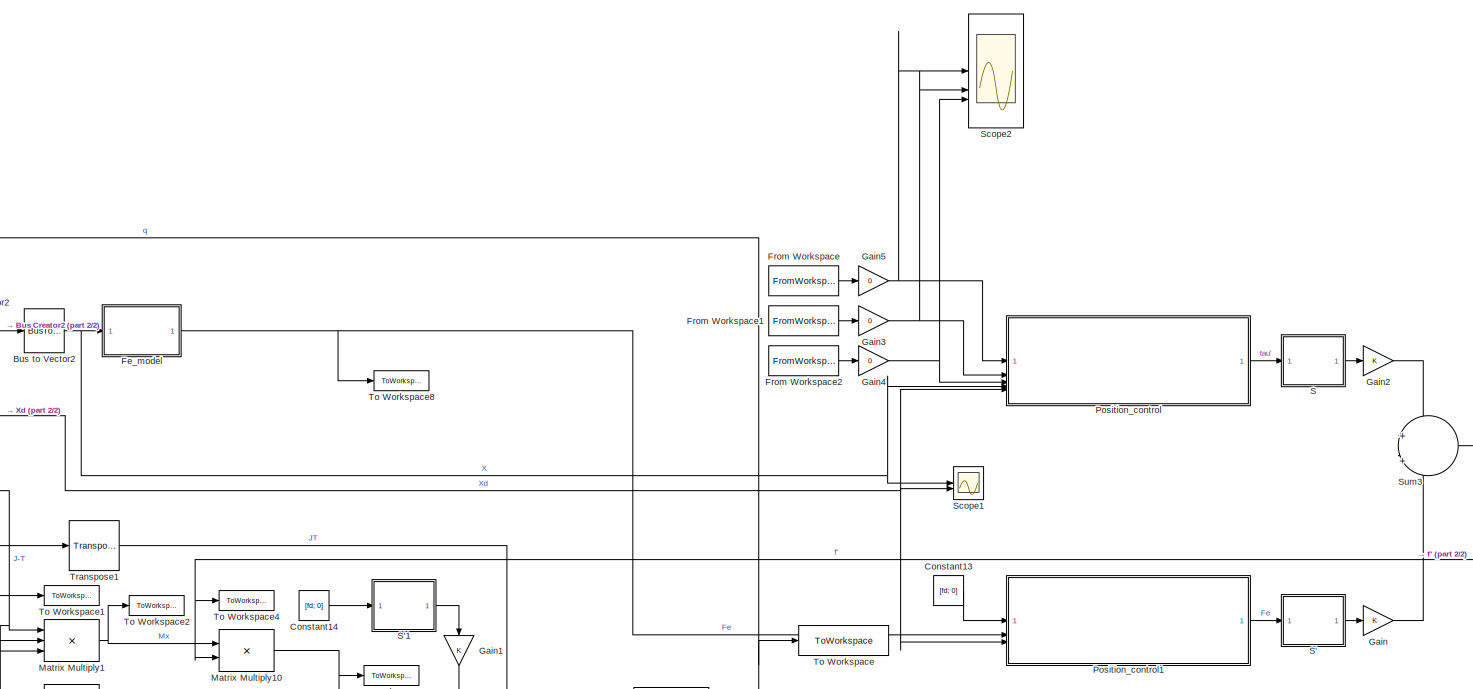
[diagram: root canvas - part 1/2, full width, middle band]
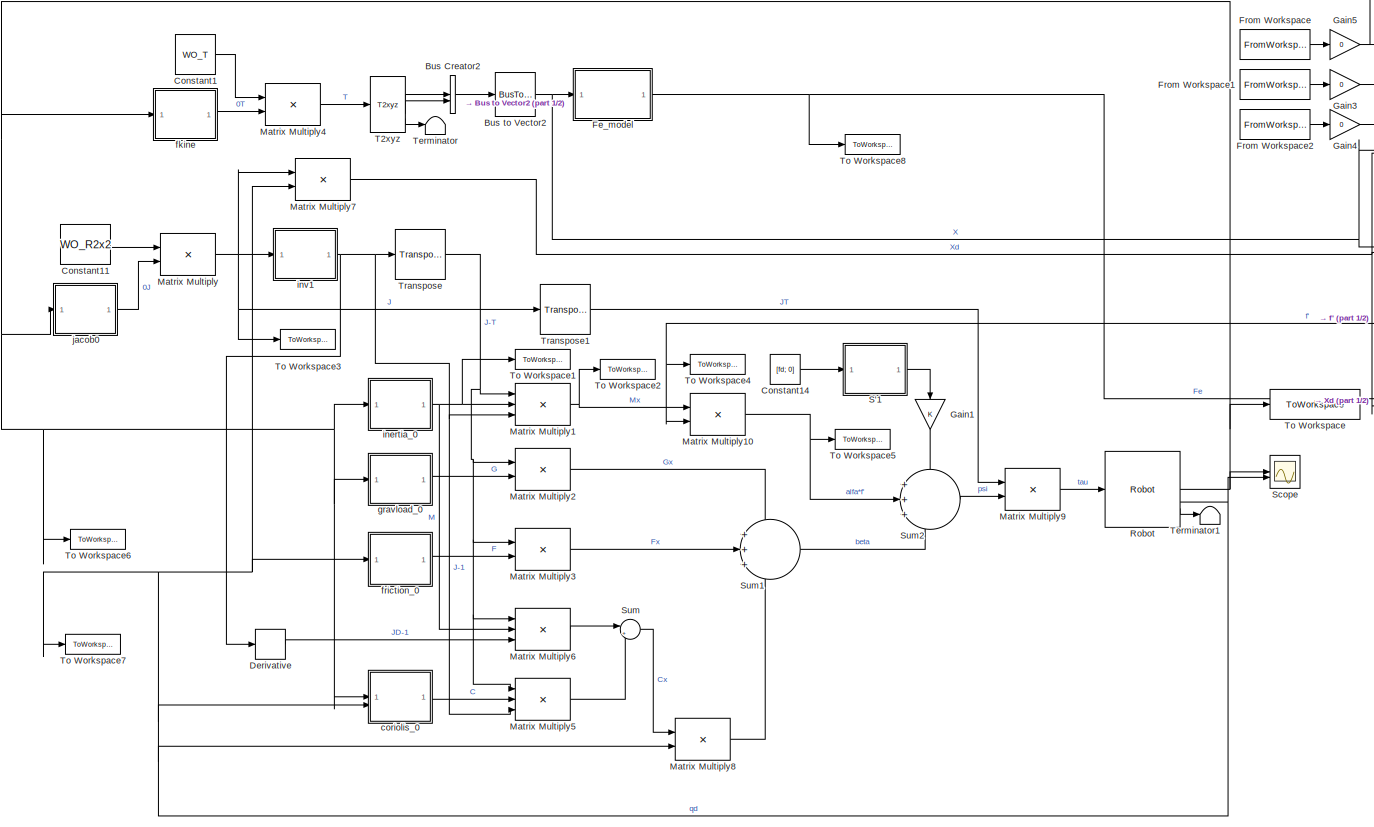
[diagram: root canvas - part 2/2, center side, full height]
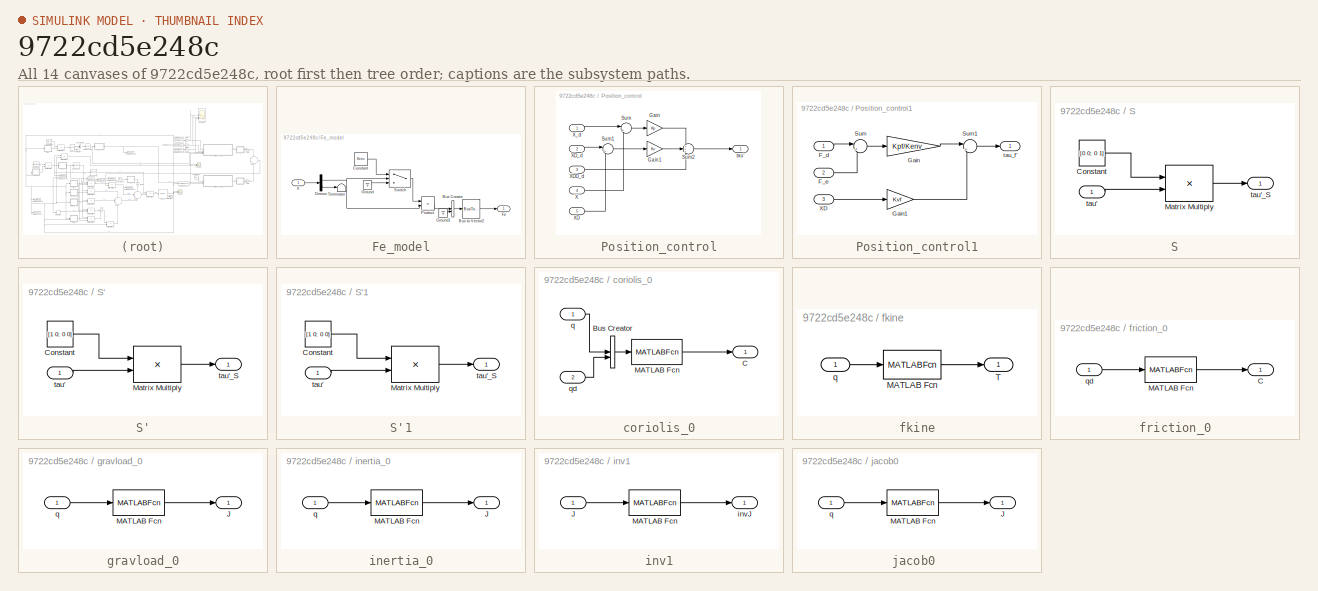
[diagram: thumbnail index - all 14 canvases of the model, root first then tree order]
MODEL slx_9722cd5e248c
KIND model
CONFIG AbsTol = auto
CONFIG EnableMultiTasking = off
CONFIG FixedStep = step
CONFIG MaxStep = auto
CONFIG MinStep = auto
CONFIG RelTol = 1e-3
CONFIG SampleTimeConstraint = Unconstrained
CONFIG SolverName = VariableStepAuto
CONFIG StartTime = 0.0
CONFIG StopTime = 2
BLOCK [BusCreator] Bus Creator2
  DisplayOption = bar
  InheritFromInputs = on
  Inputs = 2
BLOCK [BusToVector] Bus to Vector2
BLOCK [Constant] Constant1
  Value = WO_T
  VectorParams1D = off
BLOCK [Constant] Constant11
  Value = WO_R2x2
  VectorParams1D = off
BLOCK [Constant] Constant13
  Value = [fd; 0]
BLOCK [Constant] Constant14
  Value = [fd; 0]
BLOCK [Derivative] Derivative
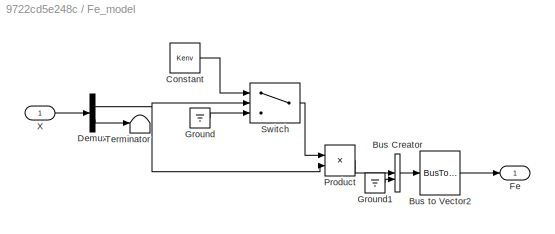
BLOCK [SubSystem] Fe_model
BLOCK [BusCreator] Fe_model/Bus Creator
  DisplayOption = bar
  InheritFromInputs = on
  Inputs = 2
BLOCK [BusToVector] Fe_model/Bus to Vector2
BLOCK [Constant] Fe_model/Constant
  Value = Kenv
BLOCK [Demux] Fe_model/Demux
  Outputs = 2
BLOCK [Outport] Fe_model/Fe
  VectorParamsAs1DForOutWhenUnconnected = off
BLOCK [Ground] Fe_model/Ground
BLOCK [Ground] Fe_model/Ground1
BLOCK [Product] Fe_model/Product
BLOCK [Switch] Fe_model/Switch
  Criteria = u2 > Threshold
  InputSameDT = off
  SaturateOnIntegerOverflow = off
BLOCK [Terminator] Fe_model/Terminator
BLOCK [Inport] Fe_model/X
BLOCK [FromWorkspace] From Workspace
  SampleTime = step
  VariableName = sim_x
BLOCK [FromWorkspace] From Workspace1
  SampleTime = step
  VariableName = sim_xd
BLOCK [FromWorkspace] From Workspace2
  SampleTime = step
  VariableName = sim_xdd
BLOCK [Gain] Gain
BLOCK [Gain] Gain1
  NameLocation = left
BLOCK [Gain] Gain2
BLOCK [Gain] Gain3
  Gain = 0
BLOCK [Gain] Gain4
  Gain = 0
BLOCK [Gain] Gain5
  Gain = 0
BLOCK [Product] Matrix Multiply
  Multiplication = Matrix(*)
BLOCK [Product] Matrix Multiply1
  Inputs = 3
  Multiplication = Matrix(*)
BLOCK [Product] Matrix Multiply10
  Multiplication = Matrix(*)
BLOCK [Product] Matrix Multiply2
  Multiplication = Matrix(*)
BLOCK [Product] Matrix Multiply3
  Multiplication = Matrix(*)
BLOCK [Product] Matrix Multiply4
  Multiplication = Matrix(*)
BLOCK [Product] Matrix Multiply5
  Inputs = 3
  Multiplication = Matrix(*)
BLOCK [Product] Matrix Multiply6
  Inputs = 3
  Multiplication = Matrix(*)
BLOCK [Product] Matrix Multiply7
  Multiplication = Matrix(*)
BLOCK [Product] Matrix Multiply8
  Multiplication = Matrix(*)
BLOCK [Product] Matrix Multiply9
  Multiplication = Matrix(*)
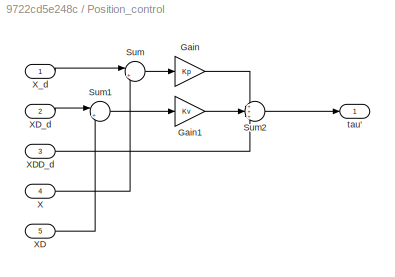
BLOCK [SubSystem] Position_control
BLOCK [Gain] Position_control/Gain
  Gain = Kp
BLOCK [Gain] Position_control/Gain1
  Gain = Kv
BLOCK [Sum] Position_control/Sum
  Inputs = |+-
BLOCK [Sum] Position_control/Sum1
  Inputs = |+-
BLOCK [Sum] Position_control/Sum2
  Inputs = +++
BLOCK [Inport] Position_control/X
  Port = 4
BLOCK [Inport] Position_control/XD
  Port = 5
BLOCK [Inport] Position_control/XDD_d
  Port = 3
BLOCK [Inport] Position_control/XD_d
  Port = 2
BLOCK [Inport] Position_control/X_d
BLOCK [Outport] Position_control/tau'
  VectorParamsAs1DForOutWhenUnconnected = off
BLOCK [SubSystem] Position_control1
BLOCK [Inport] Position_control1/F_d
BLOCK [Inport] Position_control1/F_e
  Port = 2
BLOCK [Gain] Position_control1/Gain
  Gain = Kpf/Kenv
BLOCK [Gain] Position_control1/Gain1
  Gain = Kvf
BLOCK [Sum] Position_control1/Sum
  Inputs = |+-
BLOCK [Sum] Position_control1/Sum1
  Inputs = |+-
BLOCK [Inport] Position_control1/XD
  Port = 3
BLOCK [Outport] Position_control1/tau_f'
  VectorParamsAs1DForOutWhenUnconnected = off
BLOCK [Reference] Robot  REF=roblocks/Arm/Robot  (lib defined in mdl_2a292b13c81b, mdl_69400f8cfe22, +12 more)
  SourceBlock = roblocks/Arm/Robot
BLOCK [SubSystem] S
BLOCK [SubSystem] S'
BLOCK [Constant] S'/Constant
  Value = [1 0; 0 0]
BLOCK [Product] S'/Matrix Multiply
  Multiplication = Matrix(*)
BLOCK [Inport] S'/tau'
BLOCK [Outport] S'/tau'_S
  VectorParamsAs1DForOutWhenUnconnected = off
BLOCK [SubSystem] S'1
BLOCK [Constant] S'1/Constant
  Value = [1 0; 0 0]
BLOCK [Product] S'1/Matrix Multiply
  Multiplication = Matrix(*)
BLOCK [Inport] S'1/tau'
BLOCK [Outport] S'1/tau'_S
  VectorParamsAs1DForOutWhenUnconnected = off
BLOCK [Constant] S/Constant
  Value = [0 0; 0 1]
BLOCK [Product] S/Matrix Multiply
  Multiplication = Matrix(*)
BLOCK [Inport] S/tau'
BLOCK [Outport] S/tau'_S
  VectorParamsAs1DForOutWhenUnconnected = off
BLOCK [Scope] Scope
  Floating = off
  NumInputPorts = 2
  ScopeSpecificationString = Simulink.scopes.TimeScopeBlockCfg('CurrentConfiguration', extmgr.ConfigurationSet(extmgr.Configuration('Core','General UI',true),extmgr.Configuration('Core','Source UI',true),extmgr.Configuration('Sources','WiredSimulink',true),extmgr.Configuration('Visuals','Time Domain',true,'SerializedDisplays',{struct('MinYLimReal','-2.00689','MaxYLimReal','2.3542','YLabelReal','','MinYLimMag','0.00000','MaxYL...<+1935ch>
BLOCK [Scope] Scope1
  Floating = off
  NumInputPorts = 2
  ScopeSpecificationString = Simulink.scopes.TimeScopeBlockCfg('CurrentConfiguration', extmgr.ConfigurationSet(extmgr.Configuration('Core','General UI',true),extmgr.Configuration('Core','Source UI',true),extmgr.Configuration('Sources','WiredSimulink',true,'DataLoggingVariableName','ScopeData1'),extmgr.Configuration('Visuals','Time Domain',true,'SerializedDisplays',{struct('MinYLimReal','-0.12501','MaxYLimReal','1.12504','YLab...<+2047ch>
BLOCK [Scope] Scope2
  Floating = off
  NumInputPorts = 3
  ScopeSpecificationString = Simulink.scopes.TimeScopeBlockCfg('CurrentConfiguration', extmgr.ConfigurationSet(extmgr.Configuration('Core','General UI',true),extmgr.Configuration('Core','Source UI',true),extmgr.Configuration('Sources','WiredSimulink',true,'DataLoggingVariableName','ScopeData2'),extmgr.Configuration('Visuals','Time Domain',true,'SerializedDisplays',{struct('MinYLimReal','-0.125','MaxYLimReal','1.125','YLabelRe...<+2698ch>
BLOCK [Sum] Sum
  Inputs = |++
BLOCK [Sum] Sum1
  Inputs = +++
BLOCK [Sum] Sum2
  Inputs = +++
BLOCK [Sum] Sum3
  Inputs = +|+
BLOCK [Reference] T2xyz  REF=roblocks/Toolbox/T2xyz  (lib defined in mdl_2a292b13c81b, mdl_69400f8cfe22, +12 more)
  SourceBlock = roblocks/Toolbox/T2xyz
BLOCK [Terminator] Terminator
BLOCK [Terminator] Terminator1
BLOCK [ToWorkspace] To Workspace
  FixptAsFi = on
  MaxDataPoints = inf
  SampleTime = -1
  SaveFormat = Timeseries
  VariableName = q_out
BLOCK [ToWorkspace] To Workspace1
  FixptAsFi = on
  MaxDataPoints = inf
  SampleTime = -1
  SaveFormat = Timeseries
  VariableName = M
BLOCK [ToWorkspace] To Workspace2
  FixptAsFi = on
  MaxDataPoints = inf
  SampleTime = -1
  SaveFormat = Timeseries
  VariableName = MX
BLOCK [ToWorkspace] To Workspace3
  FixptAsFi = on
  MaxDataPoints = inf
  SampleTime = -1
  SaveFormat = Timeseries
  VariableName = J
BLOCK [ToWorkspace] To Workspace4
  FixptAsFi = on
  MaxDataPoints = inf
  SampleTime = -1
  SaveFormat = Timeseries
  VariableName = f
BLOCK [ToWorkspace] To Workspace5
  FixptAsFi = on
  MaxDataPoints = inf
  SampleTime = -1
  SaveFormat = Timeseries
  VariableName = alpha_f
BLOCK [ToWorkspace] To Workspace6
  FixptAsFi = on
  MaxDataPoints = inf
  SampleTime = -1
  SaveFormat = Timeseries
  VariableName = q
BLOCK [ToWorkspace] To Workspace7
  FixptAsFi = on
  MaxDataPoints = inf
  SampleTime = -1
  SaveFormat = Timeseries
  VariableName = qd
BLOCK [ToWorkspace] To Workspace8
  FixptAsFi = on
  MaxDataPoints = inf
  SampleTime = -1
  SaveFormat = Timeseries
  VariableName = Fe
BLOCK [Reference] Transpose  REF=matrix_library/Transpose
  LibrarySourceBlock = simulink/Matrix\nOperations/Transpose
  SourceBlock = matrix_library/Transpose
  SourceType = Transpose
BLOCK [Reference] Transpose1  REF=matrix_library/Transpose
  LibrarySourceBlock = simulink/Matrix\nOperations/Transpose
  SourceBlock = matrix_library/Transpose
  SourceType = Transpose
BLOCK [SubSystem] coriolis_0
BLOCK [BusCreator] coriolis_0/Bus Creator
  DisplayOption = bar
  InheritFromInputs = on
  Inputs = 2
BLOCK [Outport] coriolis_0/C
  VectorParamsAs1DForOutWhenUnconnected = off
BLOCK [MATLABFcn] coriolis_0/MATLAB Fcn
  MATLABFcn = coriolis(robot,u(1:n)',u(n+1:2*n)')
  Output1D = off
  OutputDimensions = [robot.n robot.n]
BLOCK [Inport] coriolis_0/q
BLOCK [Inport] coriolis_0/qd
  Port = 2
BLOCK [SubSystem] fkine
BLOCK [MATLABFcn] fkine/MATLAB Fcn
  MATLABFcn = double(fkine(robot,u))
  Output1D = off
  OutputDimensions = [4 4]
BLOCK [Outport] fkine/T
  VectorParamsAs1DForOutWhenUnconnected = off
BLOCK [Inport] fkine/q
BLOCK [SubSystem] friction_0
BLOCK [Outport] friction_0/C
  VectorParamsAs1DForOutWhenUnconnected = off
BLOCK [MATLABFcn] friction_0/MATLAB Fcn
  MATLABFcn = friction(robot,u')'
  Output1D = off
  OutputDimensions = [robot.n 1]
BLOCK [Inport] friction_0/qd
BLOCK [SubSystem] gravload_0
BLOCK [Outport] gravload_0/J
  VectorParamsAs1DForOutWhenUnconnected = off
BLOCK [MATLABFcn] gravload_0/MATLAB Fcn
  MATLABFcn = gravload(robot,u')'
  Output1D = off
  OutputDimensions = [robot.n 1]
BLOCK [Inport] gravload_0/q
BLOCK [SubSystem] inertia_0
BLOCK [Outport] inertia_0/J
  VectorParamsAs1DForOutWhenUnconnected = off
BLOCK [MATLABFcn] inertia_0/MATLAB Fcn
  MATLABFcn = inertia(robot,u')
  Output1D = off
  OutputDimensions = [robot.n robot.n]
BLOCK [Inport] inertia_0/q
BLOCK [SubSystem] inv1
BLOCK [Inport] inv1/J
BLOCK [MATLABFcn] inv1/MATLAB Fcn
  MATLABFcn = inv(u)
  Output1D = off
  OutputDimensions = [n n]
BLOCK [Outport] inv1/invJ
  VectorParamsAs1DForOutWhenUnconnected = off
BLOCK [SubSystem] jacob0 
BLOCK [Outport] jacob0 /J
  VectorParamsAs1DForOutWhenUnconnected = off
BLOCK [MATLABFcn] jacob0 /MATLAB Fcn
  MATLABFcn = subsref(jacob0(robot,u), struct('type', '()', 'subs', {{1:2, 1:2}}));
  Output1D = off
  OutputDimensions = [n n]
BLOCK [Inport] jacob0 /q
LINE Bus Creator2:1 -> Bus to Vector2:1
NET Bus to Vector2:1 -> Fe_model:1, Position_control:4, Scope1:1
LINE Constant11:1 -> Matrix Multiply:1
LINE Constant13:1 -> Position_control1:1
LINE Constant14:1 -> S'1:1
LINE Constant1:1 -> Matrix Multiply4:1
LINE Derivative:1 -> Matrix Multiply6:3
LINE Fe_model/Bus Creator:1 -> Fe_model/Bus to Vector2:1
LINE Fe_model/Bus to Vector2:1 -> Fe_model/Fe:1
LINE Fe_model/Constant:1 -> Fe_model/Switch:1
NET Fe_model/Demux:1 -> Fe_model/Product:2, Fe_model/Switch:2
LINE Fe_model/Demux:2 -> Fe_model/Terminator:1
LINE Fe_model/Ground1:1 -> Fe_model/Bus Creator:2
LINE Fe_model/Ground:1 -> Fe_model/Switch:3
LINE Fe_model/Product:1 -> Fe_model/Bus Creator:1
LINE Fe_model/Switch:1 -> Fe_model/Product:1
LINE Fe_model/X:1 -> Fe_model/Demux:1
NET Fe_model:1 -> Position_control1:2, To Workspace8:1
LINE From Workspace1:1 -> Gain3:1
LINE From Workspace2:1 -> Gain4:1
LINE From Workspace:1 -> Gain5:1
LINE Gain1:1 -> Sum2:1
LINE Gain2:1 -> Sum3:1
NET Gain3:1 -> Position_control:2, Scope2:2
NET Gain4:1 -> Position_control:3, Scope2:3
NET Gain5:1 -> Position_control:1, Scope2:1
LINE Gain:1 -> Sum3:2
NET Matrix Multiply10:1 -> Sum2:2, To Workspace5:1
NET Matrix Multiply1:1 -> Matrix Multiply10:1, To Workspace2:1
LINE Matrix Multiply2:1 -> Sum1:1
LINE Matrix Multiply3:1 -> Sum1:2
LINE Matrix Multiply4:1 -> T2xyz:1
LINE Matrix Multiply5:1 -> Sum:2
LINE Matrix Multiply6:1 -> Sum:1
NET Matrix Multiply7:1 -> Position_control1:3, Position_control:5, Scope1:2
LINE Matrix Multiply8:1 -> Sum1:3
LINE Matrix Multiply9:1 -> Robot:1
NET Matrix Multiply:1 -> Matrix Multiply7:1, To Workspace3:1, Transpose1:1, inv1:1
LINE Position_control/Gain1:1 -> Position_control/Sum2:2
LINE Position_control/Gain:1 -> Position_control/Sum2:1
LINE Position_control/Sum1:1 -> Position_control/Gain1:1
LINE Position_control/Sum2:1 -> Position_control/tau':1
LINE Position_control/Sum:1 -> Position_control/Gain:1
LINE Position_control/X:1 -> Position_control/Sum:2
LINE Position_control/XD:1 -> Position_control/Sum1:2
LINE Position_control/XDD_d:1 -> Position_control/Sum2:3
LINE Position_control/XD_d:1 -> Position_control/Sum1:1
LINE Position_control/X_d:1 -> Position_control/Sum:1
LINE Position_control1/F_d:1 -> Position_control1/Sum:1
LINE Position_control1/F_e:1 -> Position_control1/Sum:2
LINE Position_control1/Gain1:1 -> Position_control1/Sum1:2
LINE Position_control1/Gain:1 -> Position_control1/Sum1:1
LINE Position_control1/Sum1:1 -> Position_control1/tau_f':1
LINE Position_control1/Sum:1 -> Position_control1/Gain:1
LINE Position_control1/XD:1 -> Position_control1/Gain1:1
LINE Position_control1:1 -> S':1
LINE Position_control:1 -> S:1
NET Robot:1 -> Scope:1, To Workspace6:1, To Workspace:1, coriolis_0:1, fkine:1, gravload_0:1, inertia_0:1, jacob0 :1
NET Robot:2 -> Matrix Multiply7:2, Matrix Multiply8:2, Scope:2, To Workspace7:1, coriolis_0:2, friction_0:1
LINE Robot:3 -> Terminator1:1
LINE S'/Constant:1 -> S'/Matrix Multiply:1
LINE S'/Matrix Multiply:1 -> S'/tau'_S:1
LINE S'/tau':1 -> S'/Matrix Multiply:2
LINE S'1/Constant:1 -> S'1/Matrix Multiply:1
LINE S'1/Matrix Multiply:1 -> S'1/tau'_S:1
LINE S'1/tau':1 -> S'1/Matrix Multiply:2
LINE S'1:1 -> Gain1:1
LINE S':1 -> Gain:1
LINE S/Constant:1 -> S/Matrix Multiply:1
LINE S/Matrix Multiply:1 -> S/tau'_S:1
LINE S/tau':1 -> S/Matrix Multiply:2
LINE S:1 -> Gain2:1
LINE Sum1:1 -> Sum2:3
LINE Sum2:1 -> Matrix Multiply9:2
NET Sum3:1 -> Matrix Multiply10:2, To Workspace4:1
LINE Sum:1 -> Matrix Multiply8:1
LINE T2xyz:1 -> Bus Creator2:1
LINE T2xyz:2 -> Bus Creator2:2
LINE T2xyz:3 -> Terminator:1
LINE Transpose1:1 -> Matrix Multiply9:1
NET Transpose:1 -> Matrix Multiply1:1, Matrix Multiply2:1, Matrix Multiply3:1, Matrix Multiply5:1, Matrix Multiply6:1
LINE coriolis_0/Bus Creator:1 -> coriolis_0/MATLAB Fcn:1
LINE coriolis_0/MATLAB Fcn:1 -> coriolis_0/C:1
LINE coriolis_0/q:1 -> coriolis_0/Bus Creator:1
LINE coriolis_0/qd:1 -> coriolis_0/Bus Creator:2
LINE coriolis_0:1 -> Matrix Multiply5:2
LINE fkine/MATLAB Fcn:1 -> fkine/T:1
LINE fkine/q:1 -> fkine/MATLAB Fcn:1
LINE fkine:1 -> Matrix Multiply4:2
LINE friction_0/MATLAB Fcn:1 -> friction_0/C:1
LINE friction_0/qd:1 -> friction_0/MATLAB Fcn:1
LINE friction_0:1 -> Matrix Multiply3:2
LINE gravload_0/MATLAB Fcn:1 -> gravload_0/J:1
LINE gravload_0/q:1 -> gravload_0/MATLAB Fcn:1
LINE gravload_0:1 -> Matrix Multiply2:2
LINE inertia_0/MATLAB Fcn:1 -> inertia_0/J:1
LINE inertia_0/q:1 -> inertia_0/MATLAB Fcn:1
NET inertia_0:1 -> Matrix Multiply1:2, Matrix Multiply6:2, To Workspace1:1
LINE inv1/J:1 -> inv1/MATLAB Fcn:1
LINE inv1/MATLAB Fcn:1 -> inv1/invJ:1
NET inv1:1 -> Derivative:1, Matrix Multiply1:3, Matrix Multiply5:3, Transpose:1
LINE jacob0 /MATLAB Fcn:1 -> jacob0 /J:1
LINE jacob0 /q:1 -> jacob0 /MATLAB Fcn:1
LINE jacob0 :1 -> Matrix Multiply:2
note: NET lines group one-source signal fan-out (src -> all destinations, sorted); 1:1 wires keep LINE
